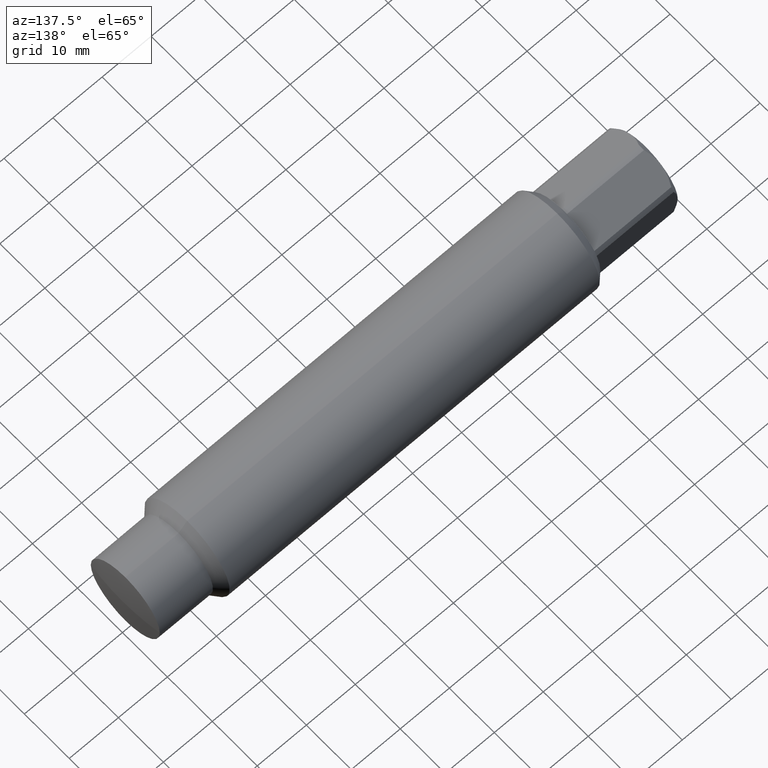
[diagram: clean part render]
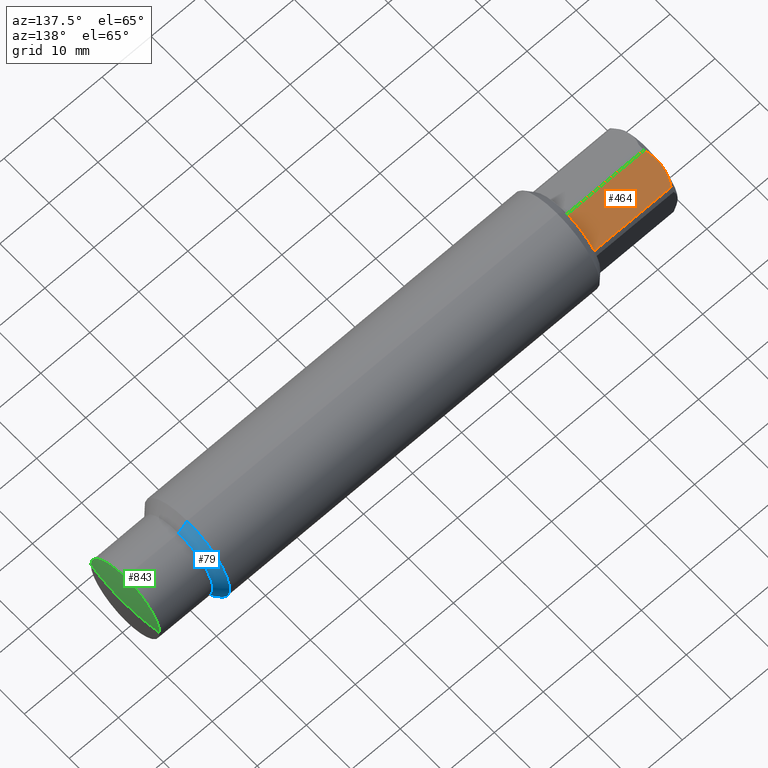
[diagram: same view with three faces highlighted in distinct colors, each labeled with its STEP entity id]
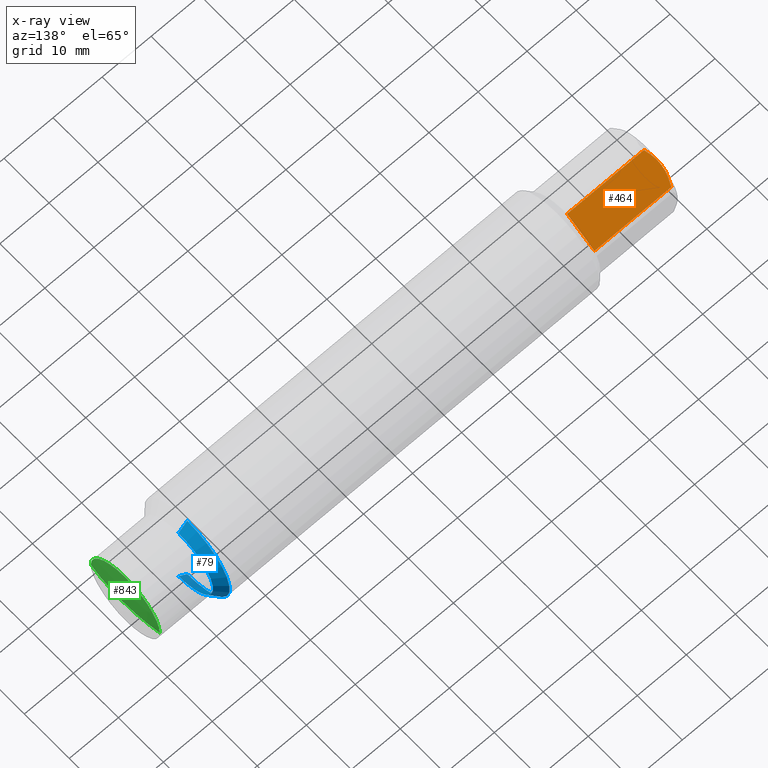
[diagram: x-ray of the same camera — body ghosted, the three highlighted faces saturated]
A machine part, auxiliary view with three faces highlighted in distinct colors.
The next image is the same camera in x-ray (body ghosted, the three faces saturated) — at least one of them is partly hidden behind the body in this view.
Their STEP definitions:

[orange] entity #464 — the highlighted planar face has unit normal (0, 0.5, 0.866).
#6 = ORIENTED_EDGE ( 'NONE', *, *, #1115, .T. ) ;
#20 = CARTESIAN_POINT ( 'NONE',  ( -4.200000000000000200, 0.1406249999999999200, 0.2435696448143734600 ) ) ;
#64 = ORIENTED_EDGE ( 'NONE', *, *, #384, .T. ) ;
#74 = EDGE_LOOP ( 'NONE', ( #64, #6, #1126, #447, #338 ) ) ;
#120 = CARTESIAN_POINT ( 'NONE',  ( -4.167750000000000700, 0.2605646332535661000, 0.1743224652689221200 ) ) ;
#188 = VERTEX_POINT ( 'NONE', #120 ) ;
#200 = CARTESIAN_POINT ( 'NONE',  ( -4.167750000000000700, 0.2605646332535661000, 0.1743224652689221200 ) ) ;
#205 = LINE ( 'NONE', #604, #945 ) ;
#245 = DIRECTION ( 'NONE',  ( 0.0000000000000000000, -0.8660254037844388200, 0.4999999999999995600 ) ) ;
#280 = CARTESIAN_POINT ( 'NONE',  ( -4.200000000000000200, 0.1406249999999999200, 0.2435696448143734600 ) ) ;
#310 = VERTEX_POINT ( 'NONE', #515 ) ;
#315 = CARTESIAN_POINT ( 'NONE',  ( -4.200000000000000200, 0.1406249999999999200, 0.2435696448143734600 ) ) ;
#338 = ORIENTED_EDGE ( 'NONE', *, *, #948, .F. ) ;
#384 = EDGE_CURVE ( 'NONE', #1170, #188, #535, .T. ) ;
#388 = CARTESIAN_POINT ( 'NONE',  ( -4.185524259549388200, 0.2221005673274900300, 0.1965297040854696600 ) ) ;
#405 = DIRECTION ( 'NONE',  ( 1.000000000000000000, 0.0000000000000000000, 0.0000000000000000000 ) ) ;
#420 = FACE_OUTER_BOUND ( 'NONE', #74, .T. ) ;
#447 = ORIENTED_EDGE ( 'NONE', *, *, #814, .T. ) ;
#464 = ADVANCED_FACE ( 'NONE', ( #420 ), #725, .T. ) ;
#492 = CARTESIAN_POINT ( 'NONE',  ( -4.196200931399095800, 0.1820648766040727200, 0.2196443209018270900 ) ) ;
#509 = CARTESIAN_POINT ( 'NONE',  ( -4.185657859473332500, 0.05949921585190071800, 0.2904076381304978600 ) ) ;
#514 = VECTOR ( 'NONE', #1055, 39.37007874015748100 ) ;
#515 = CARTESIAN_POINT ( 'NONE',  ( -4.167750000000000700, 0.02068536674643371000, 0.3128168243598248300 ) ) ;
#535 = LINE ( 'NONE', #647, #514 ) ;
#551 = CARTESIAN_POINT ( 'NONE',  ( -3.549999999999999400, 0.02068536674643354400, 0.3128168243598249400 ) ) ;
#587 = CARTESIAN_POINT ( 'NONE',  ( -4.199999999999999300, 0.1510160157302985800, 0.2375703890853318500 ) ) ;
#601 = CARTESIAN_POINT ( 'NONE',  ( -4.167750000000000700, 0.02068536674643371000, 0.3128168243598248300 ) ) ;
#602 = DIRECTION ( 'NONE',  ( 0.0000000000000000000, -0.8660254037844388200, 0.4999999999999995600 ) ) ;
#604 = CARTESIAN_POINT ( 'NONE',  ( 0.0000000000000000000, 0.02068536674643359600, 0.3128168243598249400 ) ) ;
#611 = B_SPLINE_CURVE_WITH_KNOTS ( 'NONE', 3,
 ( #315, #899, #1098, #509, #1190, #601 ),
 .UNSPECIFIED., .F., .F.,
 ( 4, 2, 4 ),
 ( 0.003614895989461152200, 0.005420736817607503200, 0.007226577645753853700 ),
 .UNSPECIFIED. ) ;
#621 = VECTOR ( 'NONE', #602, 39.37007874015748900 ) ;
#627 = CARTESIAN_POINT ( 'NONE',  ( -4.200000000000000200, 0.2812500000000000000, 0.1623797632095823600 ) ) ;
#642 = EDGE_CURVE ( 'NONE', #1025, #310, #611, .T. ) ;
#647 = CARTESIAN_POINT ( 'NONE',  ( 0.0000000000000000000, 0.2605646332535662100, 0.1743224652689220100 ) ) ;
#673 = CARTESIAN_POINT ( 'NONE',  ( -4.177466745436704300, 0.2415163027823955800, 0.1853200239940654100 ) ) ;
#725 = PLANE ( 'NONE',  #1162 ) ;
#771 = B_SPLINE_CURVE_WITH_KNOTS ( 'NONE', 3,
 ( #200, #673, #388, #1083, #492, #1173, #587, #20 ),
 .UNSPECIFIED., .F., .F.,
 ( 4, 2, 2, 4 ),
 ( 4.881363544438521300E-007, 0.001807692062907803800, 0.002711294026184477700, 0.003614895989461152200 ),
 .UNSPECIFIED. ) ;
#814 = EDGE_CURVE ( 'NONE', #310, #1142, #205, .T. ) ;
#834 = DIRECTION ( 'NONE',  ( 0.0000000000000000000, 0.4999999999999996100, 0.8660254037844389300 ) ) ;
#899 = CARTESIAN_POINT ( 'NONE',  ( -4.199999999999999300, 0.1198586435573470000, 0.2555591062966267600 ) ) ;
#945 = VECTOR ( 'NONE', #405, 39.37007874015748100 ) ;
#948 = EDGE_CURVE ( 'NONE', #1170, #1142, #1141, .T. ) ;
#1000 = CARTESIAN_POINT ( 'NONE',  ( -3.549999999999999400, 0.2812500000000000000, 0.1623797632095823600 ) ) ;
#1025 = VERTEX_POINT ( 'NONE', #280 ) ;
#1055 = DIRECTION ( 'NONE',  ( -1.000000000000000000, -0.0000000000000000000, -0.0000000000000000000 ) ) ;
#1083 = CARTESIAN_POINT ( 'NONE',  ( -4.193987063158386000, 0.1921746166841831500, 0.2138074597451382100 ) ) ;
#1098 = CARTESIAN_POINT ( 'NONE',  ( -4.196902816074408600, 0.09951115254440354200, 0.2673067357102832400 ) ) ;
#1115 = EDGE_CURVE ( 'NONE', #188, #1025, #771, .T. ) ;
#1126 = ORIENTED_EDGE ( 'NONE', *, *, #642, .T. ) ;
#1141 = LINE ( 'NONE', #1000, #621 ) ;
#1142 = VERTEX_POINT ( 'NONE', #551 ) ;
#1144 = CARTESIAN_POINT ( 'NONE',  ( -3.549999999999999400, 0.2605646332535662100, 0.1743224652689220100 ) ) ;
#1162 = AXIS2_PLACEMENT_3D ( 'NONE', #627, #834, #245 ) ;
#1170 = VERTEX_POINT ( 'NONE', #1144 ) ;
#1173 = CARTESIAN_POINT ( 'NONE',  ( -4.199210888810552200, 0.1615314564352474700, 0.2314992965636820700 ) ) ;
#1190 = CARTESIAN_POINT ( 'NONE',  ( -4.177479962077509200, 0.03975960660705943300, 0.3018043068417051200 ) ) ;

[blue] entity #79 — the highlighted conical surface has half-angle 45 deg.
#3 = CARTESIAN_POINT ( 'NONE',  ( -0.5200000000000019100, 0.0000000000000000000, 0.0000000000000000000 ) ) ;
#4 = CARTESIAN_POINT ( 'NONE',  ( -0.4499999999999999600, 0.0000000000000000000, 0.3024999999999999400 ) ) ;
#79 = ADVANCED_FACE ( 'NONE', ( #1112 ), #550, .T. ) ;
#103 = DIRECTION ( 'NONE',  ( 0.0000000000000000000, 0.0000000000000000000, 1.000000000000000000 ) ) ;
#108 = CARTESIAN_POINT ( 'NONE',  ( -0.5200000000000019100, 0.0000000000000000000, 0.3725000000000000000 ) ) ;
#109 = CARTESIAN_POINT ( 'NONE',  ( -0.4499999999999999600, 3.704556567420742000E-017, -0.3024999999999999400 ) ) ;
#145 = VERTEX_POINT ( 'NONE', #108 ) ;
#217 = CARTESIAN_POINT ( 'NONE',  ( -0.4499999999999999600, 0.0000000000000000000, 0.0000000000000000000 ) ) ;
#222 = AXIS2_PLACEMENT_3D ( 'NONE', #3, #672, #103 ) ;
#256 = LINE ( 'NONE', #4, #741 ) ;
#257 = AXIS2_PLACEMENT_3D ( 'NONE', #404, #1102, #1215 ) ;
#321 = DIRECTION ( 'NONE',  ( 0.0000000000000000000, 0.0000000000000000000, 1.000000000000000000 ) ) ;
#325 = CIRCLE ( 'NONE', #222, 0.3725000000000000000 ) ;
#331 = VECTOR ( 'NONE', #780, 39.37007874015748100 ) ;
#392 = VERTEX_POINT ( 'NONE', #950 ) ;
#404 = CARTESIAN_POINT ( 'NONE',  ( -0.4499999999999999600, 0.0000000000000000000, 0.0000000000000000000 ) ) ;
#503 = AXIS2_PLACEMENT_3D ( 'NONE', #217, #901, #321 ) ;
#540 = EDGE_CURVE ( 'NONE', #392, #1127, #911, .T. ) ;
#550 = CONICAL_SURFACE ( 'NONE', #257, 0.3024999999999999400, 0.7853981633974351800 ) ;
#599 = ORIENTED_EDGE ( 'NONE', *, *, #874, .F. ) ;
#635 = CARTESIAN_POINT ( 'NONE',  ( -0.4499999999999999600, 0.0000000000000000000, 0.3024999999999999400 ) ) ;
#637 = ORIENTED_EDGE ( 'NONE', *, *, #758, .T. ) ;
#652 = ORIENTED_EDGE ( 'NONE', *, *, #1247, .F. ) ;
#672 = DIRECTION ( 'NONE',  ( -1.000000000000000000, -0.0000000000000000000, -0.0000000000000000000 ) ) ;
#675 = VERTEX_POINT ( 'NONE', #635 ) ;
#681 = CARTESIAN_POINT ( 'NONE',  ( -0.5200000000000019100, 4.561809326823890500E-017, -0.3725000000000000000 ) ) ;
#741 = VECTOR ( 'NONE', #980, 39.37007874015748100 ) ;
#746 = CIRCLE ( 'NONE', #503, 0.3024999999999999400 ) ;
#758 = EDGE_CURVE ( 'NONE', #675, #392, #746, .T. ) ;
#780 = DIRECTION ( 'NONE',  ( -0.7071067811865567900, 8.659560562354819500E-017, -0.7071067811865382500 ) ) ;
#874 = EDGE_CURVE ( 'NONE', #675, #145, #256, .T. ) ;
#901 = DIRECTION ( 'NONE',  ( -1.000000000000000000, -0.0000000000000000000, -0.0000000000000000000 ) ) ;
#911 = LINE ( 'NONE', #109, #331 ) ;
#950 = CARTESIAN_POINT ( 'NONE',  ( -0.4499999999999999600, 3.704556567420742600E-017, -0.3024999999999999400 ) ) ;
#980 = DIRECTION ( 'NONE',  ( -0.7071067811865567900, 0.0000000000000000000, 0.7071067811865382500 ) ) ;
#1058 = ORIENTED_EDGE ( 'NONE', *, *, #540, .T. ) ;
#1089 = EDGE_LOOP ( 'NONE', ( #637, #1058, #652, #599 ) ) ;
#1102 = DIRECTION ( 'NONE',  ( -1.000000000000000000, -0.0000000000000000000, -0.0000000000000000000 ) ) ;
#1112 = FACE_OUTER_BOUND ( 'NONE', #1089, .T. ) ;
#1127 = VERTEX_POINT ( 'NONE', #681 ) ;
#1215 = DIRECTION ( 'NONE',  ( 0.0000000000000000000, 0.0000000000000000000, 1.000000000000000000 ) ) ;
#1247 = EDGE_CURVE ( 'NONE', #145, #1127, #325, .T. ) ;

[green] entity #843 — the highlighted spherical surface has radius 50.8 mm.
#49 = DIRECTION ( 'NONE',  ( 0.0000000000000000000, 1.000000000000000000, 0.0000000000000000000 ) ) ;
#102 = CARTESIAN_POINT ( 'NONE',  ( -0.02300891504286238200, -0.3025000000000001000, -3.704556567420741400E-017 ) ) ;
#113 = CARTESIAN_POINT ( 'NONE',  ( -0.02300891504286236400, 0.0000000000000000000, 0.3024999999999999900 ) ) ;
#126 = DIRECTION ( 'NONE',  ( -1.000000000000000000, -0.0000000000000000000, -0.0000000000000000000 ) ) ;
#154 = EDGE_CURVE ( 'NONE', #527, #520, #583, .T. ) ;
#157 = CARTESIAN_POINT ( 'NONE',  ( -0.02300891504286238200, 0.3024999999999999400, 0.0000000000000000000 ) ) ;
#166 = FACE_OUTER_BOUND ( 'NONE', #620, .T. ) ;
#183 = CARTESIAN_POINT ( 'NONE',  ( -2.000000000000000000, -2.449293598294706400E-016, 0.0000000000000000000 ) ) ;
#224 = ORIENTED_EDGE ( 'NONE', *, *, #559, .F. ) ;
#273 = ORIENTED_EDGE ( 'NONE', *, *, #629, .F. ) ;
#283 = DIRECTION ( 'NONE',  ( 1.000000000000000000, 0.0000000000000000000, 0.0000000000000000000 ) ) ;
#303 = CIRCLE ( 'NONE', #348, 0.3024999999999999900 ) ;
#348 = AXIS2_PLACEMENT_3D ( 'NONE', #1086, #495, #1180 ) ;
#421 = AXIS2_PLACEMENT_3D ( 'NONE', #694, #126, #800 ) ;
#487 = DIRECTION ( 'NONE',  ( 0.0000000000000000000, 1.224646799147353200E-016, -1.000000000000000000 ) ) ;
#495 = DIRECTION ( 'NONE',  ( -1.000000000000000000, -0.0000000000000000000, -0.0000000000000000000 ) ) ;
#520 = VERTEX_POINT ( 'NONE', #102 ) ;
#521 = SPHERICAL_SURFACE ( 'NONE', #1097, 2.000000000000000000 ) ;
#524 = AXIS2_PLACEMENT_3D ( 'NONE', #1079, #487, #1169 ) ;
#527 = VERTEX_POINT ( 'NONE', #630 ) ;
#559 = EDGE_CURVE ( 'NONE', #520, #732, #303, .T. ) ;
#583 = CIRCLE ( 'NONE', #524, 2.000000000000000000 ) ;
#620 = EDGE_LOOP ( 'NONE', ( #713, #861, #273, #224 ) ) ;
#629 = EDGE_CURVE ( 'NONE', #732, #687, #756, .T. ) ;
#630 = CARTESIAN_POINT ( 'NONE',  ( 0.0000000000000000000, -1.224646799147353200E-016, 0.0000000000000000000 ) ) ;
#687 = VERTEX_POINT ( 'NONE', #157 ) ;
#694 = CARTESIAN_POINT ( 'NONE',  ( -0.02300891504286236400, 0.0000000000000000000, 0.0000000000000000000 ) ) ;
#713 = ORIENTED_EDGE ( 'NONE', *, *, #154, .F. ) ;
#732 = VERTEX_POINT ( 'NONE', #113 ) ;
#756 = CIRCLE ( 'NONE', #421, 0.3024999999999999900 ) ;
#800 = DIRECTION ( 'NONE',  ( 0.0000000000000000000, 0.0000000000000000000, 1.000000000000000000 ) ) ;
#808 = AXIS2_PLACEMENT_3D ( 'NONE', #183, #868, #283 ) ;
#812 = CARTESIAN_POINT ( 'NONE',  ( -2.000000000000000000, -2.449293598294706400E-016, 0.0000000000000000000 ) ) ;
#843 = ADVANCED_FACE ( 'NONE', ( #166 ), #521, .T. ) ;
#861 = ORIENTED_EDGE ( 'NONE', *, *, #1037, .T. ) ;
#868 = DIRECTION ( 'NONE',  ( -0.0000000000000000000, 0.0000000000000000000, 1.000000000000000000 ) ) ;
#1037 = EDGE_CURVE ( 'NONE', #527, #687, #1092, .T. ) ;
#1079 = CARTESIAN_POINT ( 'NONE',  ( -2.000000000000000000, -2.449293598294706400E-016, 0.0000000000000000000 ) ) ;
#1086 = CARTESIAN_POINT ( 'NONE',  ( -0.02300891504286236400, 0.0000000000000000000, 0.0000000000000000000 ) ) ;
#1092 = CIRCLE ( 'NONE', #808, 2.000000000000000000 ) ;
#1097 = AXIS2_PLACEMENT_3D ( 'NONE', #812, #1195, #49 ) ;
#1169 = DIRECTION ( 'NONE',  ( 0.0000000000000000000, 1.000000000000000000, 1.224646799147353200E-016 ) ) ;
#1180 = DIRECTION ( 'NONE',  ( 0.0000000000000000000, 0.0000000000000000000, 1.000000000000000000 ) ) ;
#1195 = DIRECTION ( 'NONE',  ( -0.0000000000000000000, 0.0000000000000000000, -1.000000000000000000 ) ) ;